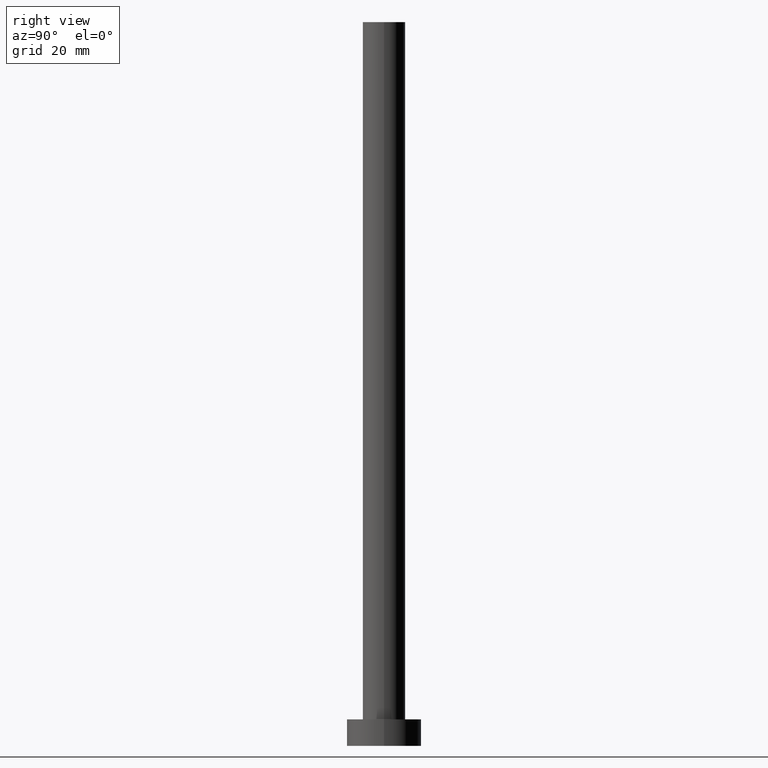
[diagram: clean part render]
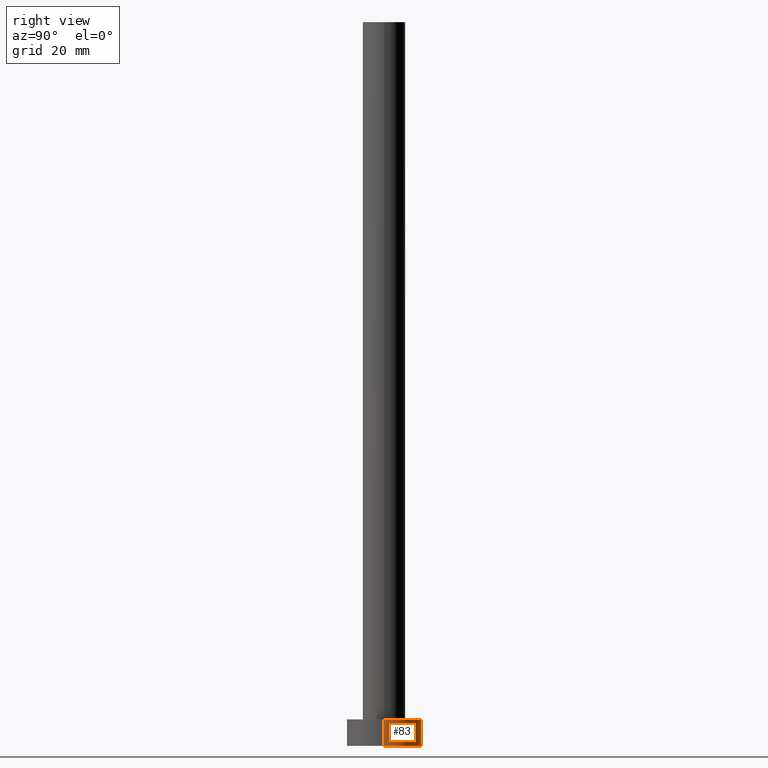
[diagram: same view with one face highlighted and labeled with its STEP entity id]
A machine part, right view. The second image highlights one B-rep face of the part: STEP entity #83.
In plain terms, the highlighted cylindrical surface (partial cylindrical patch) has radius 7 mm, axis along (-0, -0, -1).
Its self-contained STEP definition (entity closure, byte-faithful):
#10 = CARTESIAN_POINT ( 'NONE',  ( 7.000000000000000000, 8.572527594031473190E-16, 5.000000000000000000 ) ) ;
#19 = CARTESIAN_POINT ( 'NONE',  ( 0.000000000000000000, 0.000000000000000000, 5.000000000000000000 ) ) ;
#20 = AXIS2_PLACEMENT_3D ( 'NONE', #181, #242, #66 ) ;
#21 = CYLINDRICAL_SURFACE ( 'NONE', #50, 7.000000000000000000 ) ;
#31 = VECTOR ( 'NONE', #190, 1000.000000000000000 ) ;
#36 = EDGE_CURVE ( 'NONE', #137, #42, #213, .T. ) ;
#39 = VERTEX_POINT ( 'NONE', #174 ) ;
#42 = VERTEX_POINT ( 'NONE', #119 ) ;
#43 = CARTESIAN_POINT ( 'NONE',  ( 0.000000000000000000, 0.000000000000000000, 5.000000000000000000 ) ) ;
#49 = ORIENTED_EDGE ( 'NONE', *, *, #107, .F. ) ;
#50 = AXIS2_PLACEMENT_3D ( 'NONE', #19, #192, #217 ) ;
#62 = ORIENTED_EDGE ( 'NONE', *, *, #246, .F. ) ;
#66 = DIRECTION ( 'NONE',  ( 1.000000000000000000, 0.000000000000000000, 0.000000000000000000 ) ) ;
#69 = ORIENTED_EDGE ( 'NONE', *, *, #231, .T. ) ;
#72 = VECTOR ( 'NONE', #195, 1000.000000000000000 ) ;
#83 = ADVANCED_FACE ( 'NONE', ( #99 ), #21, .T. ) ;
#95 = CIRCLE ( 'NONE', #20, 7.000000000000000000 ) ;
#99 = FACE_OUTER_BOUND ( 'NONE', #108, .T. ) ;
#101 = DIRECTION ( 'NONE',  ( 0.000000000000000000, 0.000000000000000000, 1.000000000000000000 ) ) ;
#107 = EDGE_CURVE ( 'NONE', #122, #39, #158, .T. ) ;
#108 = EDGE_LOOP ( 'NONE', ( #62, #165, #69, #49 ) ) ;
#119 = CARTESIAN_POINT ( 'NONE',  ( 7.000000000000000000, 8.572527594031473190E-16, 0.000000000000000000 ) ) ;
#122 = VERTEX_POINT ( 'NONE', #214 ) ;
#133 = CARTESIAN_POINT ( 'NONE',  ( -7.000000000000000000, 0.000000000000000000, 5.000000000000000000 ) ) ;
#134 = CARTESIAN_POINT ( 'NONE',  ( 7.000000000000000000, 8.572527594031473190E-16, 5.000000000000000000 ) ) ;
#137 = VERTEX_POINT ( 'NONE', #10 ) ;
#158 = LINE ( 'NONE', #133, #31 ) ;
#165 = ORIENTED_EDGE ( 'NONE', *, *, #36, .T. ) ;
#166 = AXIS2_PLACEMENT_3D ( 'NONE', #43, #101, #183 ) ;
#174 = CARTESIAN_POINT ( 'NONE',  ( -7.000000000000000000, 0.000000000000000000, 0.000000000000000000 ) ) ;
#181 = CARTESIAN_POINT ( 'NONE',  ( 0.000000000000000000, 0.000000000000000000, 0.000000000000000000 ) ) ;
#183 = DIRECTION ( 'NONE',  ( 1.000000000000000000, 0.000000000000000000, 0.000000000000000000 ) ) ;
#190 = DIRECTION ( 'NONE',  ( -0.000000000000000000, -0.000000000000000000, -1.000000000000000000 ) ) ;
#192 = DIRECTION ( 'NONE',  ( -0.000000000000000000, -0.000000000000000000, -1.000000000000000000 ) ) ;
#195 = DIRECTION ( 'NONE',  ( -0.000000000000000000, -0.000000000000000000, -1.000000000000000000 ) ) ;
#213 = LINE ( 'NONE', #134, #72 ) ;
#214 = CARTESIAN_POINT ( 'NONE',  ( -7.000000000000000000, 0.000000000000000000, 5.000000000000000000 ) ) ;
#217 = DIRECTION ( 'NONE',  ( -1.000000000000000000, 0.000000000000000000, 0.000000000000000000 ) ) ;
#231 = EDGE_CURVE ( 'NONE', #42, #39, #95, .T. ) ;
#242 = DIRECTION ( 'NONE',  ( 0.000000000000000000, 0.000000000000000000, 1.000000000000000000 ) ) ;
#245 = CIRCLE ( 'NONE', #166, 7.000000000000000000 ) ;
#246 = EDGE_CURVE ( 'NONE', #137, #122, #245, .T. ) ;